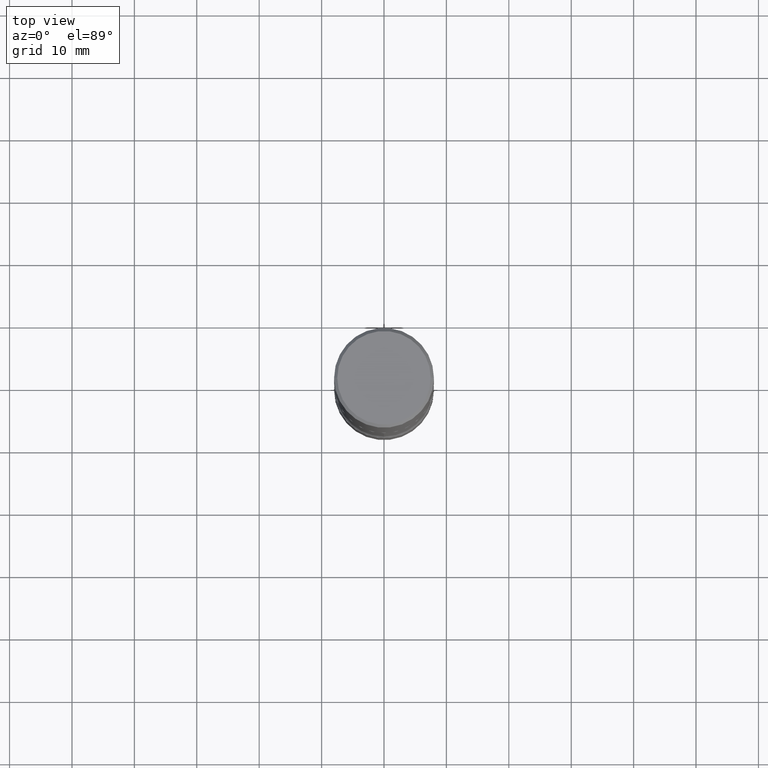
[diagram: clean part render]
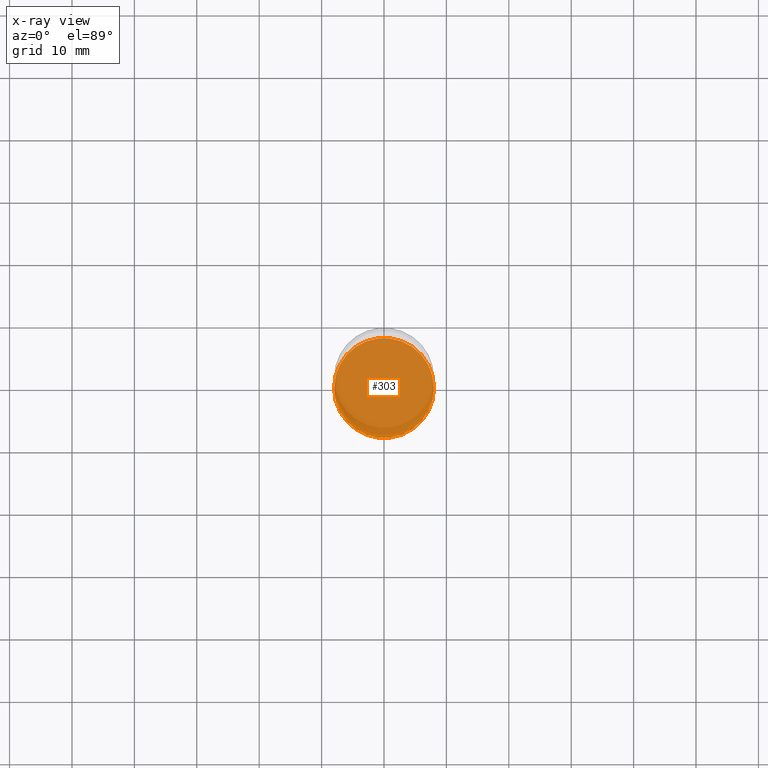
[diagram: x-ray — body ghosted, one internal face saturated and labeled with its STEP entity id]
A machine part, top view, then the same camera in x-ray: the body is ghosted and one INTERNAL B-rep face — a face not visible from any outside direction — is saturated and labeled: STEP entity #303.
In plain terms, the highlighted planar face has unit normal (0, -0, -1).
Its self-contained STEP definition (entity closure, byte-faithful):
#18 = CARTESIAN_POINT ( 'NONE',  ( 9.146542428893648262E-29, -1.305883850354113437E-14, -3.740200000000000191 ) ) ;
#31 = ORIENTED_EDGE ( 'NONE', *, *, #481, .T. ) ;
#76 = ORIENTED_EDGE ( 'NONE', *, *, #247, .T. ) ;
#93 = DIRECTION ( 'NONE',  ( -1.000000000000000000, 6.982962677686265922E-15, -4.876176775795935793E-29 ) ) ;
#105 = AXIS2_PLACEMENT_3D ( 'NONE', #170, #485, #93 ) ;
#138 = CARTESIAN_POINT ( 'NONE',  ( 9.146542428893648262E-29, -1.305883850354113437E-14, -3.740200000000000191 ) ) ;
#157 = CIRCLE ( 'NONE', #366, 0.3149500000000002298 ) ;
#170 = CARTESIAN_POINT ( 'NONE',  ( 9.146542428893648262E-29, -1.305883850354113437E-14, -3.740200000000000191 ) ) ;
#174 = FACE_OUTER_BOUND ( 'NONE', #407, .T. ) ;
#192 = CARTESIAN_POINT ( 'NONE',  ( 0.3149500000000002298, -1.525812259887842581E-14, -3.740200000000000191 ) ) ;
#214 = CIRCLE ( 'NONE', #544, 0.3149500000000002298 ) ;
#247 = EDGE_CURVE ( 'NONE', #472, #368, #214, .T. ) ;
#274 = PLANE ( 'NONE',  #105 ) ;
#303 = ADVANCED_FACE ( 'NONE', ( #174 ), #274, .F. ) ;
#366 = AXIS2_PLACEMENT_3D ( 'NONE', #138, #501, #457 ) ;
#368 = VERTEX_POINT ( 'NONE', #192 ) ;
#378 = CARTESIAN_POINT ( 'NONE',  ( -0.3149500000000002298, -1.212679817799203354E-14, -3.740200000000000191 ) ) ;
#407 = EDGE_LOOP ( 'NONE', ( #31, #76 ) ) ;
#457 = DIRECTION ( 'NONE',  ( 1.000000000000000000, -6.982962677686264344E-15, 0.000000000000000000 ) ) ;
#472 = VERTEX_POINT ( 'NONE', #378 ) ;
#481 = EDGE_CURVE ( 'NONE', #368, #472, #157, .T. ) ;
#485 = DIRECTION ( 'NONE',  ( 2.438088387897960049E-29, -3.491481338843145188E-15, -1.000000000000000000 ) ) ;
#487 = DIRECTION ( 'NONE',  ( -2.445468806185136597E-29, 3.491481338843145583E-15, 1.000000000000000000 ) ) ;
#501 = DIRECTION ( 'NONE',  ( -2.445468806185136597E-29, 3.491481338843145583E-15, 1.000000000000000000 ) ) ;
#533 = DIRECTION ( 'NONE',  ( 1.000000000000000000, -6.982962677686264344E-15, 0.000000000000000000 ) ) ;
#544 = AXIS2_PLACEMENT_3D ( 'NONE', #18, #487, #533 ) ;